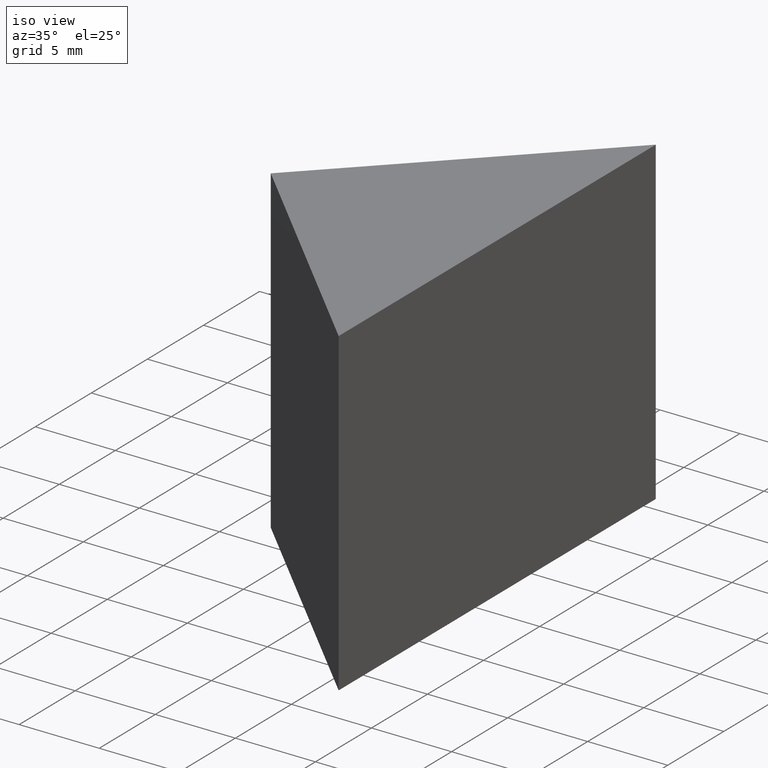
[diagram: clean part render]
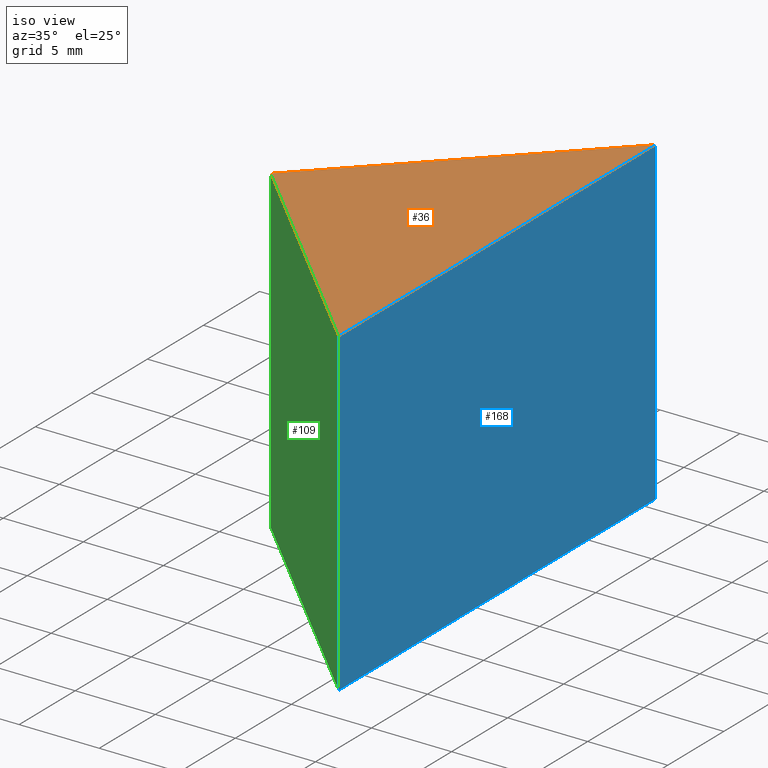
[diagram: same view with three faces highlighted in distinct colors, each labeled with its STEP entity id]
A machine part, iso view with three faces highlighted in distinct colors.
Their STEP definitions:

[orange] entity #36 — the highlighted planar face has unit normal (0, -0, 1).
#3 = CARTESIAN_POINT ( 'NONE',  ( 196.7073461950922100, 60.06111063005870000, 20.00000000000000000 ) ) ;
#4 = AXIS2_PLACEMENT_3D ( 'NONE', #130, #154, #104 ) ;
#6 = LINE ( 'NONE', #118, #31 ) ;
#14 = CARTESIAN_POINT ( 'NONE',  ( 182.5652105713612300, 45.91897500632775600, 20.00000000000000000 ) ) ;
#20 = VECTOR ( 'NONE', #52, 999.9999999999998900 ) ;
#23 = VERTEX_POINT ( 'NONE', #91 ) ;
#31 = VECTOR ( 'NONE', #94, 1000.000000000000100 ) ;
#32 = FACE_OUTER_BOUND ( 'NONE', #44, .T. ) ;
#36 = ADVANCED_FACE ( 'NONE', ( #32 ), #92, .T. ) ;
#43 = EDGE_CURVE ( 'NONE', #103, #23, #87, .T. ) ;
#44 = EDGE_LOOP ( 'NONE', ( #45, #121, #162 ) ) ;
#45 = ORIENTED_EDGE ( 'NONE', *, *, #43, .T. ) ;
#52 = DIRECTION ( 'NONE',  ( -0.7071067811865486800, -0.7071067811865464600, 0.0000000000000000000 ) ) ;
#54 = LINE ( 'NONE', #3, #20 ) ;
#63 = CARTESIAN_POINT ( 'NONE',  ( 196.7073461950922100, 31.77683938259680800, 20.00000000000000000 ) ) ;
#87 = LINE ( 'NONE', #63, #166 ) ;
#88 = VERTEX_POINT ( 'NONE', #14 ) ;
#91 = CARTESIAN_POINT ( 'NONE',  ( 196.7073461950922100, 60.06111063005870000, 20.00000000000000000 ) ) ;
#92 = PLANE ( 'NONE',  #4 ) ;
#94 = DIRECTION ( 'NONE',  ( 0.7071067811865483500, -0.7071067811865466800, 0.0000000000000000000 ) ) ;
#103 = VERTEX_POINT ( 'NONE', #133 ) ;
#104 = DIRECTION ( 'NONE',  ( 1.000000000000000000, 0.0000000000000000000, -0.0000000000000000000 ) ) ;
#106 = DIRECTION ( 'NONE',  ( 0.0000000000000000000, 1.000000000000000000, 0.0000000000000000000 ) ) ;
#113 = EDGE_CURVE ( 'NONE', #23, #88, #54, .T. ) ;
#118 = CARTESIAN_POINT ( 'NONE',  ( 182.5652105713612300, 45.91897500632775600, 20.00000000000000000 ) ) ;
#121 = ORIENTED_EDGE ( 'NONE', *, *, #113, .T. ) ;
#130 = CARTESIAN_POINT ( 'NONE',  ( 0.0000000000000000000, 0.0000000000000000000, 20.00000000000000000 ) ) ;
#133 = CARTESIAN_POINT ( 'NONE',  ( 196.7073461950922100, 31.77683938259680800, 20.00000000000000000 ) ) ;
#147 = EDGE_CURVE ( 'NONE', #88, #103, #6, .T. ) ;
#154 = DIRECTION ( 'NONE',  ( 0.0000000000000000000, -0.0000000000000000000, 1.000000000000000000 ) ) ;
#162 = ORIENTED_EDGE ( 'NONE', *, *, #147, .T. ) ;
#166 = VECTOR ( 'NONE', #106, 1000.000000000000000 ) ;

[blue] entity #168 — the highlighted planar face has unit normal (-1, 0, 0).
#9 = AXIS2_PLACEMENT_3D ( 'NONE', #70, #160, #80 ) ;
#17 = PLANE ( 'NONE',  #9 ) ;
#21 = VECTOR ( 'NONE', #65, 1000.000000000000000 ) ;
#23 = VERTEX_POINT ( 'NONE', #91 ) ;
#24 = DIRECTION ( 'NONE',  ( -0.0000000000000000000, -0.0000000000000000000, -1.000000000000000000 ) ) ;
#34 = ORIENTED_EDGE ( 'NONE', *, *, #35, .F. ) ;
#35 = EDGE_CURVE ( 'NONE', #23, #159, #55, .T. ) ;
#38 = LINE ( 'NONE', #119, #98 ) ;
#41 = CARTESIAN_POINT ( 'NONE',  ( 196.7073461950922100, 60.06111063005870000, 0.0000000000000000000 ) ) ;
#43 = EDGE_CURVE ( 'NONE', #103, #23, #87, .T. ) ;
#48 = CARTESIAN_POINT ( 'NONE',  ( 196.7073461950922100, 60.06111063005870000, 20.00000000000000000 ) ) ;
#53 = EDGE_CURVE ( 'NONE', #103, #117, #135, .T. ) ;
#55 = LINE ( 'NONE', #48, #21 ) ;
#56 = DIRECTION ( 'NONE',  ( 0.0000000000000000000, 1.000000000000000000, 0.0000000000000000000 ) ) ;
#63 = CARTESIAN_POINT ( 'NONE',  ( 196.7073461950922100, 31.77683938259680800, 20.00000000000000000 ) ) ;
#64 = ORIENTED_EDGE ( 'NONE', *, *, #43, .F. ) ;
#65 = DIRECTION ( 'NONE',  ( -0.0000000000000000000, -0.0000000000000000000, -1.000000000000000000 ) ) ;
#69 = FACE_OUTER_BOUND ( 'NONE', #101, .T. ) ;
#70 = CARTESIAN_POINT ( 'NONE',  ( 196.7073461950922100, 31.77683938259680800, 20.00000000000000000 ) ) ;
#80 = DIRECTION ( 'NONE',  ( 0.0000000000000000000, 0.0000000000000000000, 1.000000000000000000 ) ) ;
#81 = CARTESIAN_POINT ( 'NONE',  ( 196.7073461950922100, 31.77683938259680800, 0.0000000000000000000 ) ) ;
#87 = LINE ( 'NONE', #63, #166 ) ;
#91 = CARTESIAN_POINT ( 'NONE',  ( 196.7073461950922100, 60.06111063005870000, 20.00000000000000000 ) ) ;
#98 = VECTOR ( 'NONE', #56, 1000.000000000000000 ) ;
#99 = VECTOR ( 'NONE', #24, 1000.000000000000000 ) ;
#101 = EDGE_LOOP ( 'NONE', ( #165, #34, #64, #124 ) ) ;
#103 = VERTEX_POINT ( 'NONE', #133 ) ;
#106 = DIRECTION ( 'NONE',  ( 0.0000000000000000000, 1.000000000000000000, 0.0000000000000000000 ) ) ;
#117 = VERTEX_POINT ( 'NONE', #81 ) ;
#119 = CARTESIAN_POINT ( 'NONE',  ( 196.7073461950922100, 31.77683938259680800, 0.0000000000000000000 ) ) ;
#124 = ORIENTED_EDGE ( 'NONE', *, *, #53, .T. ) ;
#133 = CARTESIAN_POINT ( 'NONE',  ( 196.7073461950922100, 31.77683938259680800, 20.00000000000000000 ) ) ;
#135 = LINE ( 'NONE', #144, #99 ) ;
#142 = EDGE_CURVE ( 'NONE', #117, #159, #38, .T. ) ;
#144 = CARTESIAN_POINT ( 'NONE',  ( 196.7073461950922100, 31.77683938259680800, 20.00000000000000000 ) ) ;
#159 = VERTEX_POINT ( 'NONE', #41 ) ;
#160 = DIRECTION ( 'NONE',  ( -1.000000000000000000, 0.0000000000000000000, 0.0000000000000000000 ) ) ;
#165 = ORIENTED_EDGE ( 'NONE', *, *, #142, .T. ) ;
#166 = VECTOR ( 'NONE', #106, 1000.000000000000000 ) ;
#168 = ADVANCED_FACE ( 'NONE', ( #69 ), #17, .F. ) ;

[green] entity #109 — the highlighted planar face has unit normal (0.7071, 0.7071, -0).
#6 = LINE ( 'NONE', #118, #31 ) ;
#14 = CARTESIAN_POINT ( 'NONE',  ( 182.5652105713612300, 45.91897500632775600, 20.00000000000000000 ) ) ;
#24 = DIRECTION ( 'NONE',  ( -0.0000000000000000000, -0.0000000000000000000, -1.000000000000000000 ) ) ;
#29 = DIRECTION ( 'NONE',  ( -0.0000000000000000000, -0.0000000000000000000, -1.000000000000000000 ) ) ;
#31 = VECTOR ( 'NONE', #94, 1000.000000000000100 ) ;
#33 = EDGE_CURVE ( 'NONE', #57, #117, #153, .T. ) ;
#39 = ORIENTED_EDGE ( 'NONE', *, *, #147, .F. ) ;
#46 = AXIS2_PLACEMENT_3D ( 'NONE', #95, #146, #156 ) ;
#47 = CARTESIAN_POINT ( 'NONE',  ( 182.5652105713612300, 45.91897500632775600, 0.0000000000000000000 ) ) ;
#49 = ORIENTED_EDGE ( 'NONE', *, *, #33, .T. ) ;
#51 = PLANE ( 'NONE',  #46 ) ;
#53 = EDGE_CURVE ( 'NONE', #103, #117, #135, .T. ) ;
#57 = VERTEX_POINT ( 'NONE', #47 ) ;
#67 = VECTOR ( 'NONE', #29, 1000.000000000000000 ) ;
#76 = DIRECTION ( 'NONE',  ( 0.7071067811865483500, -0.7071067811865466800, 0.0000000000000000000 ) ) ;
#81 = CARTESIAN_POINT ( 'NONE',  ( 196.7073461950922100, 31.77683938259680800, 0.0000000000000000000 ) ) ;
#88 = VERTEX_POINT ( 'NONE', #14 ) ;
#94 = DIRECTION ( 'NONE',  ( 0.7071067811865483500, -0.7071067811865466800, 0.0000000000000000000 ) ) ;
#95 = CARTESIAN_POINT ( 'NONE',  ( 182.5652105713612300, 45.91897500632775600, 20.00000000000000000 ) ) ;
#96 = FACE_OUTER_BOUND ( 'NONE', #150, .T. ) ;
#99 = VECTOR ( 'NONE', #24, 1000.000000000000000 ) ;
#102 = LINE ( 'NONE', #158, #67 ) ;
#103 = VERTEX_POINT ( 'NONE', #133 ) ;
#109 = ADVANCED_FACE ( 'NONE', ( #96 ), #51, .F. ) ;
#117 = VERTEX_POINT ( 'NONE', #81 ) ;
#118 = CARTESIAN_POINT ( 'NONE',  ( 182.5652105713612300, 45.91897500632775600, 20.00000000000000000 ) ) ;
#123 = ORIENTED_EDGE ( 'NONE', *, *, #53, .F. ) ;
#133 = CARTESIAN_POINT ( 'NONE',  ( 196.7073461950922100, 31.77683938259680800, 20.00000000000000000 ) ) ;
#135 = LINE ( 'NONE', #144, #99 ) ;
#138 = EDGE_CURVE ( 'NONE', #88, #57, #102, .T. ) ;
#140 = VECTOR ( 'NONE', #76, 1000.000000000000100 ) ;
#144 = CARTESIAN_POINT ( 'NONE',  ( 196.7073461950922100, 31.77683938259680800, 20.00000000000000000 ) ) ;
#145 = CARTESIAN_POINT ( 'NONE',  ( 182.5652105713612300, 45.91897500632775600, 0.0000000000000000000 ) ) ;
#146 = DIRECTION ( 'NONE',  ( 0.7071067811865468000, 0.7071067811865483500, -0.0000000000000000000 ) ) ;
#147 = EDGE_CURVE ( 'NONE', #88, #103, #6, .T. ) ;
#150 = EDGE_LOOP ( 'NONE', ( #49, #123, #39, #164 ) ) ;
#153 = LINE ( 'NONE', #145, #140 ) ;
#156 = DIRECTION ( 'NONE',  ( -0.7071067811865483500, 0.7071067811865468000, 0.0000000000000000000 ) ) ;
#158 = CARTESIAN_POINT ( 'NONE',  ( 182.5652105713612300, 45.91897500632775600, 20.00000000000000000 ) ) ;
#164 = ORIENTED_EDGE ( 'NONE', *, *, #138, .T. ) ;